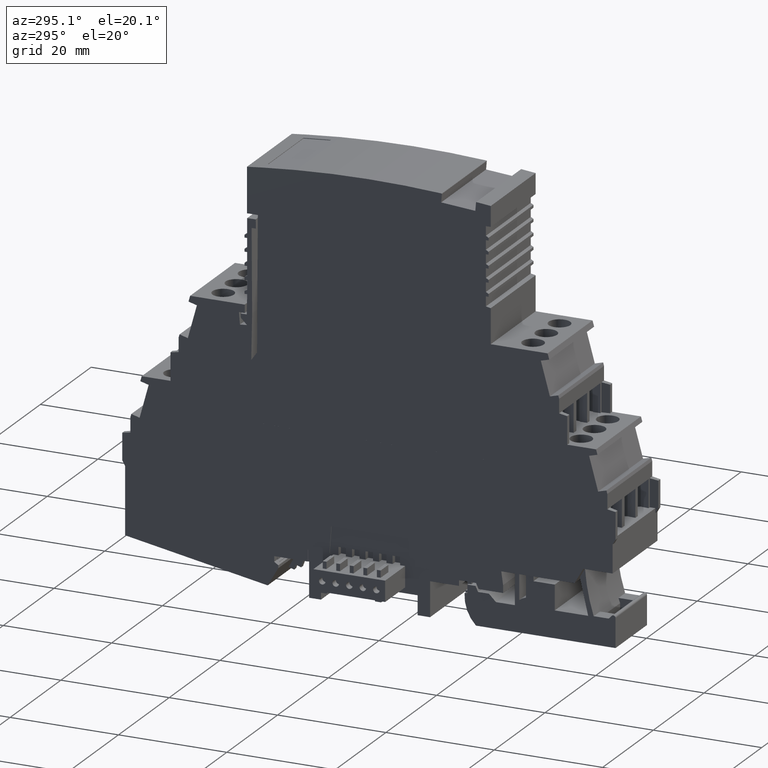
[diagram: clean part render]
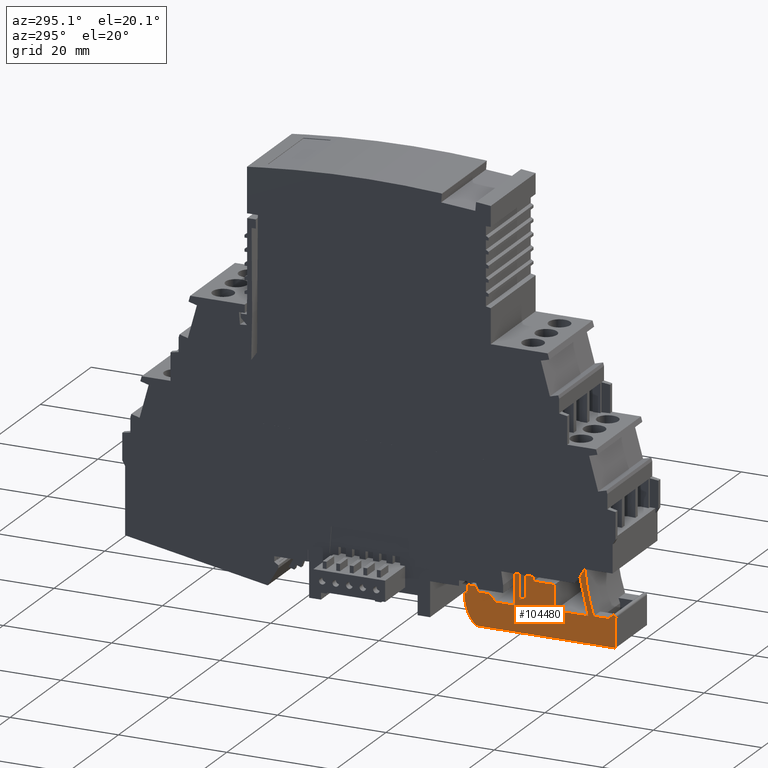
[diagram: same view with one face highlighted and labeled with its STEP entity id]
A machine part, auxiliary view. The second image highlights one B-rep face of the part: STEP entity #104480.
In plain terms, the highlighted planar face has unit normal (-1, 0, -0).
Its self-contained STEP definition (entity closure, byte-faithful):
#95870=CARTESIAN_POINT('',(79.745063769015,32.5143464870229,
-17.488341445192));
#95880=VERTEX_POINT('',#95870);
#96240=CARTESIAN_POINT('',(78.7945118902532,34.1607506362684,
-17.4883414452643));
#96250=VERTEX_POINT('',#96240);
#96280=CARTESIAN_POINT('',(73.0893224548727,44.0424286051525,
-17.4883414456987));
#96290=DIRECTION('',(-0.5,0.866025403784439,-3.80712844472623E-11));
#96300=VECTOR('',#96290,1.);
#96310=LINE('',#96280,#96300);
#96320=EDGE_CURVE('',#95880,#96250,#96310,.T.);
#97730=CARTESIAN_POINT('',(77.1962249483997,25.945346578444,
-17.4883414449032));
#97740=VERTEX_POINT('',#97730);
#97770=CARTESIAN_POINT('',(42.4807811699336,36.9623254544226,
-17.4883414453875));
#97780=DIRECTION('',(1.96178160729168E-21,4.39608926050624E-11,1.));
#97790=DIRECTION('',(0.949996010420321,-0.312262037695065,
1.3727317901887E-11));
#97800=AXIS2_PLACEMENT_3D('',#97770,#97780,#97790);
#97810=CIRCLE('',#97800,36.42164);
#97820=EDGE_CURVE('',#97740,#96250,#97810,.T.);
#98720=CARTESIAN_POINT('',(73.8358629913006,26.535296072102,
-17.4883414449291));
#98730=VERTEX_POINT('',#98720);
#98760=CARTESIAN_POINT('',(56.3287304582568,44.0424286051525,
-17.4883414456987));
#98770=DIRECTION('',(-0.707106781186548,0.707106781186548,
-3.1085045266666E-11));
#98780=VECTOR('',#98770,1.);
#98790=LINE('',#98760,#98780);
#98800=CARTESIAN_POINT('',(74.4258124849619,25.9453465784407,
-17.4883414449032));
#98810=VERTEX_POINT('',#98800);
#98820=EDGE_CURVE('',#98810,#98730,#98790,.T.);
#99580=CARTESIAN_POINT('',(150.854165359947,25.945346578444,
-17.4883414449032));
#99590=DIRECTION('',(-1.,1.79744530254644E-23,1.96178160729168E-21));
#99600=VECTOR('',#99590,1.);
#99610=LINE('',#99580,#99600);
#99620=EDGE_CURVE('',#97740,#98810,#99610,.T.);
#102260=CARTESIAN_POINT('',(80.1872512973473,25.0611237093052,
-17.4883414448643));
#102270=DIRECTION('',(-1.96178160729168E-21,-4.39608926050624E-11,-1.));
#102280=DIRECTION('',(-1.,2.41178596559833E-26,1.96178160729168E-21));
#102290=AXIS2_PLACEMENT_3D('',#102260,#102270,#102280);
#102300=PLANE('',#102290);
#102310=ORIENTED_EDGE('',*,*,#99620,.F.);
#102320=ORIENTED_EDGE('',*,*,#98820,.F.);
#102330=CARTESIAN_POINT('',(73.5530202788293,26.2524533596307,
-17.4883414449167));
#102340=DIRECTION('',(1.96178160729168E-21,4.39608926050624E-11,1.));
#102350=DIRECTION('',(1.,-1.79776841997322E-23,-1.96178160729168E-21));
#102360=AXIS2_PLACEMENT_3D('',#102330,#102340,#102350);
#102370=CIRCLE('',#102360,0.4);
#102380=CARTESIAN_POINT('',(73.1530202788304,26.2524533596307,
-17.4883414449167));
#102390=VERTEX_POINT('',#102380);
#102400=EDGE_CURVE('',#98730,#102390,#102370,.T.);
#102410=ORIENTED_EDGE('',*,*,#102400,.F.);
#102420=CARTESIAN_POINT('',(73.1530202788349,44.0424286051525,
-17.4883414456987));
#102430=DIRECTION('',(-2.56261314536537E-13,-1.,4.39608926050624E-11));
#102440=VECTOR('',#102430,1.);
#102450=LINE('',#102420,#102440);
#102460=CARTESIAN_POINT('',(73.153020278829,20.8953468090695,
-17.4883414446812));
#102470=VERTEX_POINT('',#102460);
#102480=EDGE_CURVE('',#102390,#102470,#102450,.T.);
#102490=ORIENTED_EDGE('',*,*,#102480,.F.);
#102500=CARTESIAN_POINT('',(150.854165359947,20.8953468090695,
-17.4883414446812));
#102510=DIRECTION('',(1.,-2.20487936494582E-26,-1.96178160729168E-21));
#102520=VECTOR('',#102510,1.);
#102530=LINE('',#102500,#102520);
#102540=CARTESIAN_POINT('',(98.9325780762748,20.8953468090695,
-17.4883414446812));
#102550=VERTEX_POINT('',#102540);
#102560=EDGE_CURVE('',#102470,#102550,#102530,.T.);
#102570=ORIENTED_EDGE('',*,*,#102560,.F.);
#102580=CARTESIAN_POINT('',(117.959075362956,44.0424286051525,
-17.4883414456987));
#102590=DIRECTION('',(-0.634994923914638,-0.772516308308533,
3.39605445106724E-11));
#102600=VECTOR('',#102590,1.);
#102610=LINE('',#102580,#102600);
#102620=CARTESIAN_POINT('',(99.8840285398721,22.0528536992749,
-17.4883414447321));
#102630=VERTEX_POINT('',#102620);
#102640=EDGE_CURVE('',#102630,#102550,#102610,.T.);
#102650=ORIENTED_EDGE('',*,*,#102640,.T.);
#102660=CARTESIAN_POINT('',(111.152085011044,44.0424286051525,
-17.4883414456987));
#102670=DIRECTION('',(-0.456039483983704,-0.889959543489409,
3.91234298081095E-11));
#102680=VECTOR('',#102670,1.);
#102690=LINE('',#102660,#102680);
#102700=CARTESIAN_POINT('',(100.567339480032,23.3863327372158,
-17.4883414447907));
#102710=VERTEX_POINT('',#102700);
#102720=EDGE_CURVE('',#102710,#102630,#102690,.T.);
#102730=ORIENTED_EDGE('',*,*,#102720,.T.);
#102740=CARTESIAN_POINT('',(106.043068331292,44.0424286051525,
-17.4883414456987));
#102750=DIRECTION('',(-0.256239716690482,-0.966613266818939,
4.24931859909073E-11));
#102760=VECTOR('',#102750,1.);
#102770=LINE('',#102740,#102760);
#102780=CARTESIAN_POINT('',(100.951092366552,24.8339640259234,
-17.4883414448543));
#102790=VERTEX_POINT('',#102780);
#102800=EDGE_CURVE('',#102790,#102710,#102770,.T.);
#102810=ORIENTED_EDGE('',*,*,#102800,.T.);
#102820=CARTESIAN_POINT('',(101.987089914935,44.0424286051525,
-17.4883414456987));
#102830=DIRECTION('',(-0.0538561531184888,-0.998548704255971,
4.38970924655115E-11));
#102840=VECTOR('',#102830,1.);
#102850=LINE('',#102820,#102840);
#102860=CARTESIAN_POINT('',(101.031749083172,26.3294228585061,
-17.4883414449201));
#102870=VERTEX_POINT('',#102860);
#102880=EDGE_CURVE('',#102870,#102790,#102850,.T.);
#102890=ORIENTED_EDGE('',*,*,#102880,.T.);
#102900=CARTESIAN_POINT('',(150.854165359947,12.9795466521768,
-17.4883414443332));
#102910=DIRECTION('',(-0.965925826289068,0.258819045102521,
-1.13779343354458E-11));
#102920=VECTOR('',#102910,1.);
#102930=LINE('',#102900,#102920);
#102940=CARTESIAN_POINT('',(100.50678599831,26.4700862931509,
-17.4883414449262));
#102950=VERTEX_POINT('',#102940);
#102960=EDGE_CURVE('',#102870,#102950,#102930,.T.);
#102970=ORIENTED_EDGE('',*,*,#102960,.F.);
#102980=CARTESIAN_POINT('',(100.50678599831,44.0424286051525,
-17.4883414456987));
#102990=DIRECTION('',(4.16907061751247E-16,1.,-4.39608926050624E-11));
#103000=VECTOR('',#102990,1.);
#103010=LINE('',#102980,#103000);
#103020=CARTESIAN_POINT('',(100.50678599831,27.945346578444,
-17.4883414449911));
#103030=VERTEX_POINT('',#103020);
#103040=EDGE_CURVE('',#102950,#103030,#103010,.T.);
#103050=ORIENTED_EDGE('',*,*,#103040,.F.);
#103060=CARTESIAN_POINT('',(150.854165359947,27.945346578444,
-17.4883414449911));
#103070=DIRECTION('',(1.,-5.55111512533066E-17,-1.96178160729168E-21));
#103080=VECTOR('',#103070,1.);
#103090=LINE('',#103060,#103080);
#103100=CARTESIAN_POINT('',(99.0039339598457,27.945346578444,
-17.4883414449911));
#103110=VERTEX_POINT('',#103100);
#103120=EDGE_CURVE('',#103110,#103030,#103090,.T.);
#103130=ORIENTED_EDGE('',*,*,#103120,.T.);
#103140=CARTESIAN_POINT('',(106.433356433739,44.0424286051525,
-17.4883414456987));
#103150=DIRECTION('',(-0.419058177463056,-0.907959384499847,
3.99147088718352E-11));
#103160=VECTOR('',#103150,1.);
#103170=LINE('',#103140,#103160);
#103180=CARTESIAN_POINT('',(98.5423954983055,26.945346578444,
-17.4883414449471));
#103190=VERTEX_POINT('',#103180);
#103200=EDGE_CURVE('',#103110,#103190,#103170,.T.);
#103210=ORIENTED_EDGE('',*,*,#103200,.F.);
#103220=CARTESIAN_POINT('',(150.854165359947,26.945346578444,
-17.4883414449471));
#103230=DIRECTION('',(-1.,2.20487936494582E-26,1.96178160729168E-21));
#103240=VECTOR('',#103230,1.);
#103250=LINE('',#103220,#103240);
#103260=CARTESIAN_POINT('',(96.5240015573969,26.945346578444,
-17.4883414449471));
#103270=VERTEX_POINT('',#103260);
#103280=EDGE_CURVE('',#103190,#103270,#103250,.T.);
#103290=ORIENTED_EDGE('',*,*,#103280,.F.);
#103300=CARTESIAN_POINT('',(113.621083584102,44.0424286051525,
-17.4883414456987));
#103310=DIRECTION('',(-0.707106781186479,-0.707106781186616,
3.10850862430784E-11));
#103320=VECTOR('',#103310,1.);
#103330=LINE('',#103300,#103320);
#103340=CARTESIAN_POINT('',(95.2286552046954,25.6500002257422,
-17.4883414448902));
#103350=VERTEX_POINT('',#103340);
#103360=EDGE_CURVE('',#103270,#103350,#103330,.T.);
#103370=ORIENTED_EDGE('',*,*,#103360,.F.);
#103380=CARTESIAN_POINT('',(150.854165359947,25.6500002257422,
-17.4883414448902));
#103390=DIRECTION('',(1.,-2.20487936494582E-26,-1.96178160729168E-21));
#103400=VECTOR('',#103390,1.);
#103410=LINE('',#103380,#103400);
#103420=CARTESIAN_POINT('',(91.7369769271806,25.6500002257422,
-17.4883414448902));
#103430=VERTEX_POINT('',#103420);
#103440=EDGE_CURVE('',#103430,#103350,#103410,.T.);
#103450=ORIENTED_EDGE('',*,*,#103440,.T.);
#103460=CARTESIAN_POINT('',(91.7369769271806,44.0424286051525,
-17.4883414456987));
#103470=DIRECTION('',(2.58023692393323E-26,1.,-4.39608926050624E-11));
#103480=VECTOR('',#103470,1.);
#103490=LINE('',#103460,#103480);
#103500=CARTESIAN_POINT('',(91.7369769271806,31.3324230113216,
-17.48834144514));
#103510=VERTEX_POINT('',#103500);
#103520=EDGE_CURVE('',#103430,#103510,#103490,.T.);
#103530=ORIENTED_EDGE('',*,*,#103520,.F.);
#103540=CARTESIAN_POINT('',(93.5232517224097,44.0424286051525,
-17.4883414456987));
#103550=DIRECTION('',(0.139173100960069,0.99026806874157,
-4.35330685167088E-11));
#103560=VECTOR('',#103550,1.);
#103570=LINE('',#103540,#103560);
#103580=CARTESIAN_POINT('',(91.7956636098611,31.7500004563735,
-17.4883414451584));
#103590=VERTEX_POINT('',#103580);
#103600=EDGE_CURVE('',#103510,#103590,#103570,.T.);
#103610=ORIENTED_EDGE('',*,*,#103600,.F.);
#103620=CARTESIAN_POINT('',(150.854165359947,31.7500004563886,
-17.4883414451584));
#103630=DIRECTION('',(-1.,-2.56108359931407E-13,1.97303901844064E-21));
#103640=VECTOR('',#103630,1.);
#103650=LINE('',#103620,#103640);
#103660=CARTESIAN_POINT('',(90.9369769271807,31.7500004563733,
-17.4883414451584));
#103670=VERTEX_POINT('',#103660);
#103680=EDGE_CURVE('',#103590,#103670,#103650,.T.);
#103690=ORIENTED_EDGE('',*,*,#103680,.F.);
#103700=CARTESIAN_POINT('',(90.9369769271807,44.0424286051525,
-17.4883414456987));
#103710=DIRECTION('',(2.58023692393323E-26,1.,-4.39608926050624E-11));
#103720=VECTOR('',#103710,1.);
#103730=LINE('',#103700,#103720);
#103740=CARTESIAN_POINT('',(90.9369769271807,26.6791982498681,
-17.4883414449354));
#103750=VERTEX_POINT('',#103740);
#103760=EDGE_CURVE('',#103750,#103670,#103730,.T.);
#103770=ORIENTED_EDGE('',*,*,#103760,.T.);
#103780=CARTESIAN_POINT('',(150.854165359947,-11.1603519060512,
-17.488341443272));
#103790=DIRECTION('',(0.845507280671106,-0.533963892348679,
2.34735641888706E-11));
#103800=VECTOR('',#103790,1.);
#103810=LINE('',#103780,#103800);
#103820=CARTESIAN_POINT('',(90.3368647834045,27.0581875542323,
-17.4883414449521));
#103830=VERTEX_POINT('',#103820);
#103840=EDGE_CURVE('',#103830,#103750,#103810,.T.);
#103850=ORIENTED_EDGE('',*,*,#103840,.T.);
#103860=CARTESIAN_POINT('',(150.854165359947,2.49248329040694,
-17.4883414438722));
#103870=DIRECTION('',(0.926570378631504,-0.376121434436635,
1.65346478522266E-11));
#103880=VECTOR('',#103870,1.);
#103890=LINE('',#103860,#103880);
#103900=CARTESIAN_POINT('',(89.6792168257914,27.3251456816193,
-17.4883414449638));
#103910=VERTEX_POINT('',#103900);
#103920=EDGE_CURVE('',#103910,#103830,#103890,.T.);
#103930=ORIENTED_EDGE('',*,*,#103920,.T.);
#103940=CARTESIAN_POINT('',(89.6792168257914,44.0424286051525,
-17.4883414456987));
#103950=DIRECTION('',(2.58023692393323E-26,1.,-4.39608926050624E-11));
#103960=VECTOR('',#103950,1.);
#103970=LINE('',#103940,#103960);
#103980=CARTESIAN_POINT('',(89.6792168257914,31.750000456373,
-17.4883414451584));
#103990=VERTEX_POINT('',#103980);
#104000=EDGE_CURVE('',#103910,#103990,#103970,.T.);
#104010=ORIENTED_EDGE('',*,*,#104000,.F.);
#104020=CARTESIAN_POINT('',(88.3054829544434,31.7500004563726,
-17.4883414451584));
#104030=VERTEX_POINT('',#104020);
#104040=EDGE_CURVE('',#103990,#104030,#103650,.T.);
#104050=ORIENTED_EDGE('',*,*,#104040,.F.);
#104060=CARTESIAN_POINT('',(88.3054829544434,44.0424286051525,
-17.4883414456987));
#104070=DIRECTION('',(-2.58023692393323E-26,-1.,4.39608926050624E-11));
#104080=VECTOR('',#104070,1.);
#104090=LINE('',#104060,#104080);
#104100=CARTESIAN_POINT('',(88.3054829544434,30.4500006720581,
-17.4883414451012));
#104110=VERTEX_POINT('',#104100);
#104120=EDGE_CURVE('',#104030,#104110,#104090,.T.);
#104130=ORIENTED_EDGE('',*,*,#104120,.F.);
#104140=CARTESIAN_POINT('',(150.854165359947,30.4500006720581,
-17.4883414451012));
#104150=DIRECTION('',(-1.,2.20487936494582E-26,1.96178160729168E-21));
#104160=VECTOR('',#104150,1.);
#104170=LINE('',#104140,#104160);
#104180=CARTESIAN_POINT('',(84.3817490830955,30.4500006720581,
-17.4883414451012));
#104190=VERTEX_POINT('',#104180);
#104200=EDGE_CURVE('',#104110,#104190,#104170,.T.);
#104210=ORIENTED_EDGE('',*,*,#104200,.F.);
#104220=CARTESIAN_POINT('',(84.3817490830955,44.0424286051525,
-17.4883414456987));
#104230=DIRECTION('',(2.58023692393323E-26,1.,-4.39608926050624E-11));
#104240=VECTOR('',#104230,1.);
#104250=LINE('',#104220,#104240);
#104260=CARTESIAN_POINT('',(84.3817490830955,25.8500002257422,
-17.488341444899));
#104270=VERTEX_POINT('',#104260);
#104280=EDGE_CURVE('',#104270,#104190,#104250,.T.);
#104290=ORIENTED_EDGE('',*,*,#104280,.T.);
#104300=CARTESIAN_POINT('',(150.854165359947,25.8500002257422,
-17.488341444899));
#104310=DIRECTION('',(1.,-2.20487936494582E-26,-1.96178160729168E-21));
#104320=VECTOR('',#104310,1.);
#104330=LINE('',#104300,#104320);
#104340=CARTESIAN_POINT('',(78.2076506498365,25.8500002257422,
-17.488341444899));
#104350=VERTEX_POINT('',#104340);
#104360=EDGE_CURVE('',#104350,#104270,#104330,.T.);
#104370=ORIENTED_EDGE('',*,*,#104360,.T.);
#104380=CARTESIAN_POINT('',(75.4739472823141,13.9999999951387,
-17.488341444378));
#104390=DIRECTION('',(-0.224788299976077,-0.974407625274898,
4.28358289687046E-11));
#104400=VECTOR('',#104390,1.);
#104410=LINE('',#104380,#104400);
#104420=EDGE_CURVE('',#95880,#104350,#104410,.T.);
#104430=ORIENTED_EDGE('',*,*,#104420,.T.);
#104440=ORIENTED_EDGE('',*,*,#96320,.F.);
#104450=ORIENTED_EDGE('',*,*,#97820,.T.);
#104460=EDGE_LOOP('',(#104450,#104440,#104430,#104370,#104290,#104210,
#104130,#104050,#104010,#103930,#103850,#103770,#103690,#103610,#103530,
#103450,#103370,#103290,#103210,#103130,#103050,#102970,#102890,#102810,
#102730,#102650,#102570,#102490,#102410,#102320,#102310));
#104470=FACE_OUTER_BOUND('',#104460,.T.);
#104480=ADVANCED_FACE('',(#104470),#102300,.T.);